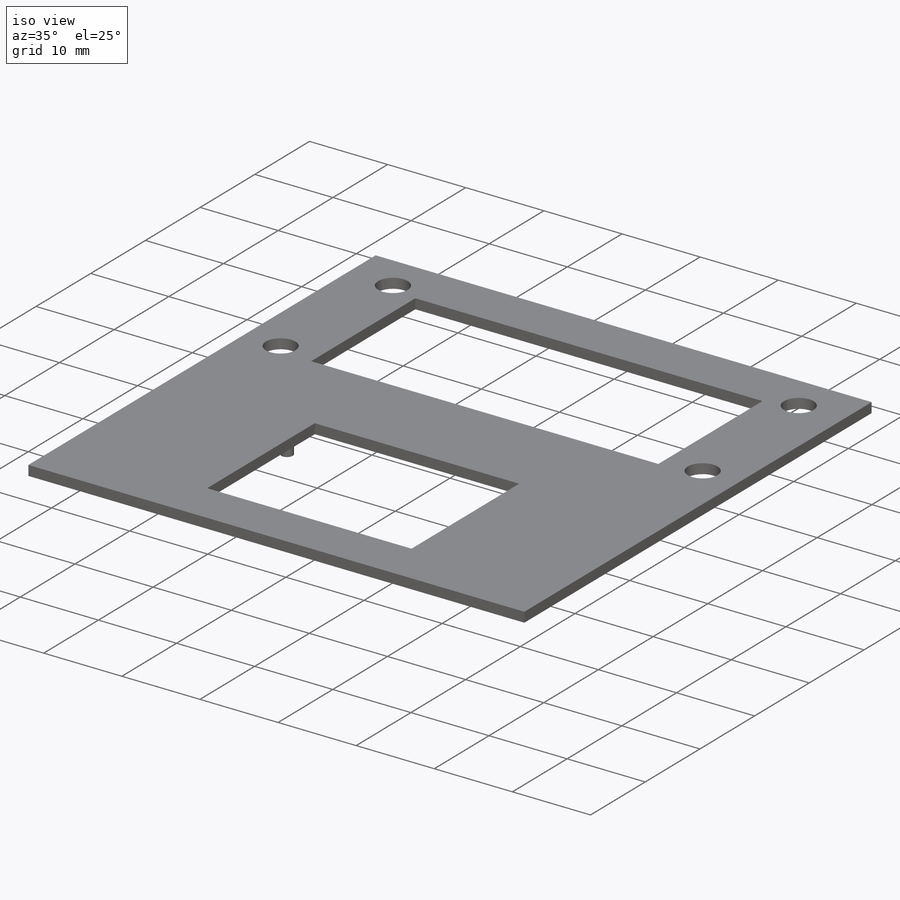
[diagram: iso view]
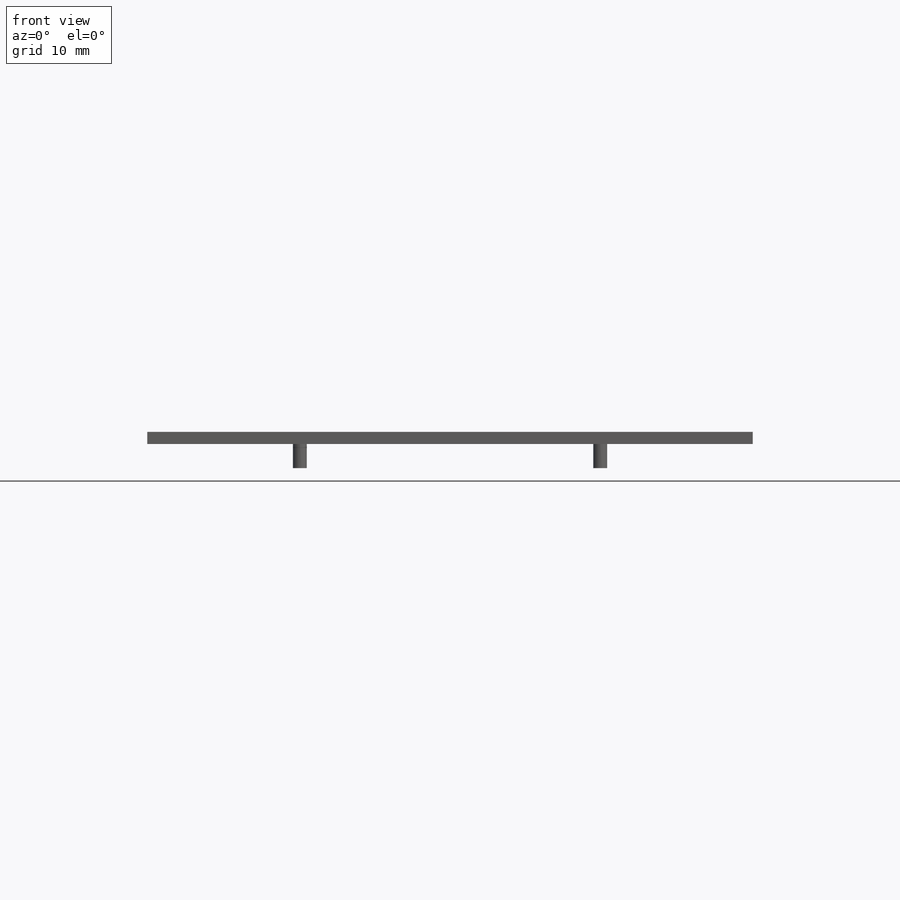
[diagram: front view]
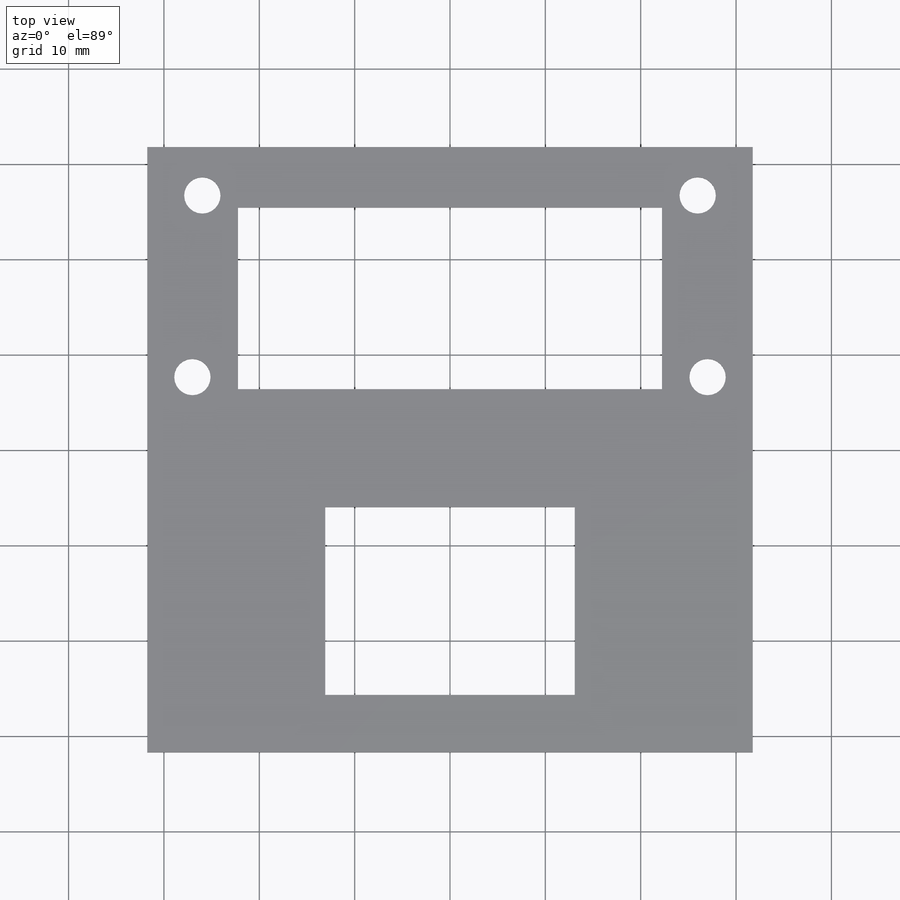
[diagram: top view]
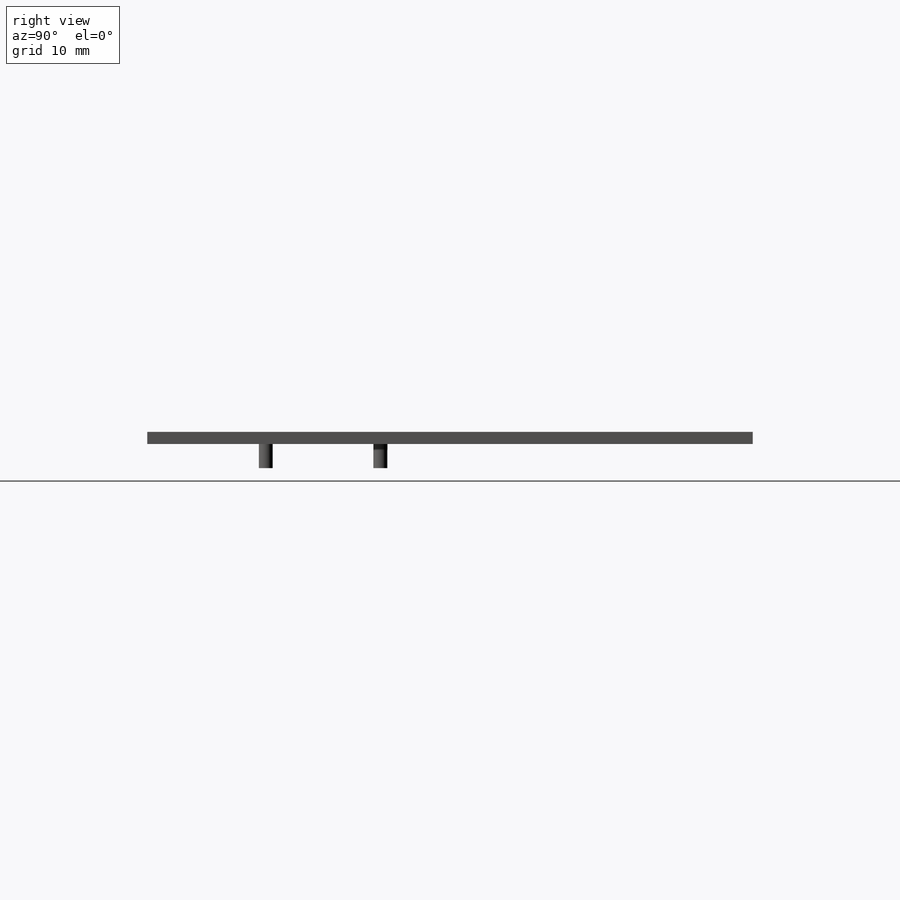
[diagram: right view]
SOLIDWORKS PART (.sldprt)
format: sldprt  version: not decoded by parser v0  size: 262,656 bytes
history: native  units: mm
features: sketch x5, cut_extrude x3, extrude x2, material x1 (+12 scaffold rows collapsed)
feature tree (23):
  scaffold x12  (default folders/planes/origin — collapsed)
  material  "Material <not specified>"
  sketch  "Sketch1"  dims[c1.D1=~71.243254mm c1.D2=~120.222991mm c2.D1=63.5mm c2.D2=63.5mm]
  extrude  "Boss-Extrude1"  Depth=1.27mm
  sketch  "Sketch2"  dims[c1.D1=3.81mm c1.D4=3.81mm c2.D1=~12.418898mm c2.D2=5.7785mm c2.D3=5.08mm c2.D5=24.13mm c2.D6=4.7371mm]
  cut_extrude  "Cut-Extrude1"  Depth=1.27mm
  sketch  "Sketch3"  dims[c1.D1=~12.811434mm c1.D2=~37.920906mm c2.D1=44.45mm c2.D2=19.05mm]
  cut_extrude  "Cut-Extrude2"  Depth=1.27mm
  sketch  "Sketch4"  dims[c1.D7=1.4605mm c1.D8=1.4605mm c1.D1=~11.653667mm c1.D2=~27.086362mm c2.D1=19.685mm c2.D2=33.5788mm c2.D3=1.27mm c2.D4=1.0414mm c2.D5=13.2842mm c2.D6=1.0414mm]
  extrude  "Boss-Extrude2"  Depth=3.81mm
  sketch  "Sketch5"  dims[c1.D1=~18.468945mm c1.D2=~23.766098mm c2.D1=26.162mm c2.D2=19.685mm]
  cut_extrude  "Cut-Extrude3"  [1 undecoded]
decode coverage: 9 of 10 modeling features carry decoded parameters
note: ~ marks probable driven/reference dimensions
note: 1 parameter value undecoded
note: suppression state not decoded; provenance and decode notes live in map.json
